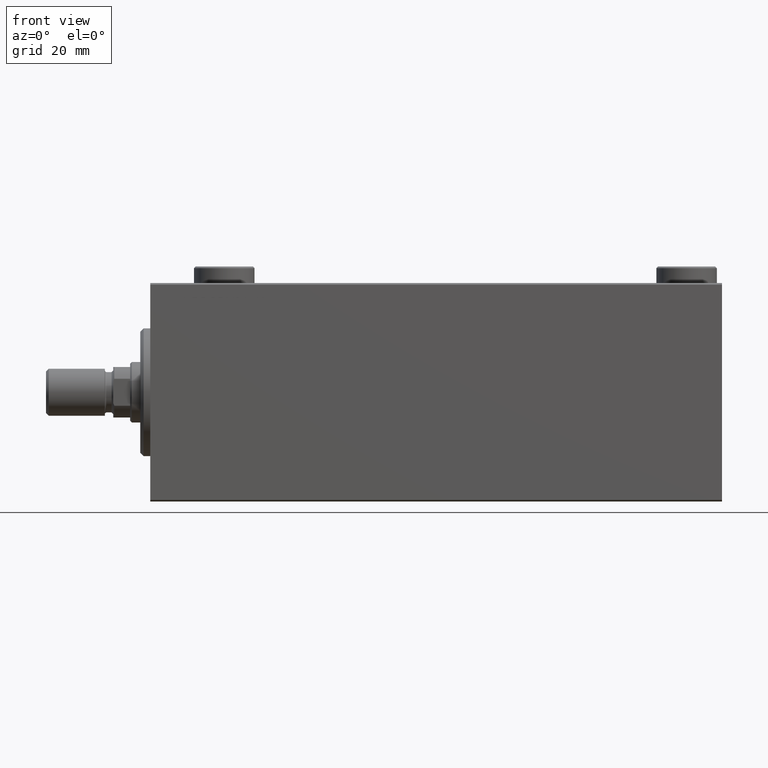
[diagram: clean part render]
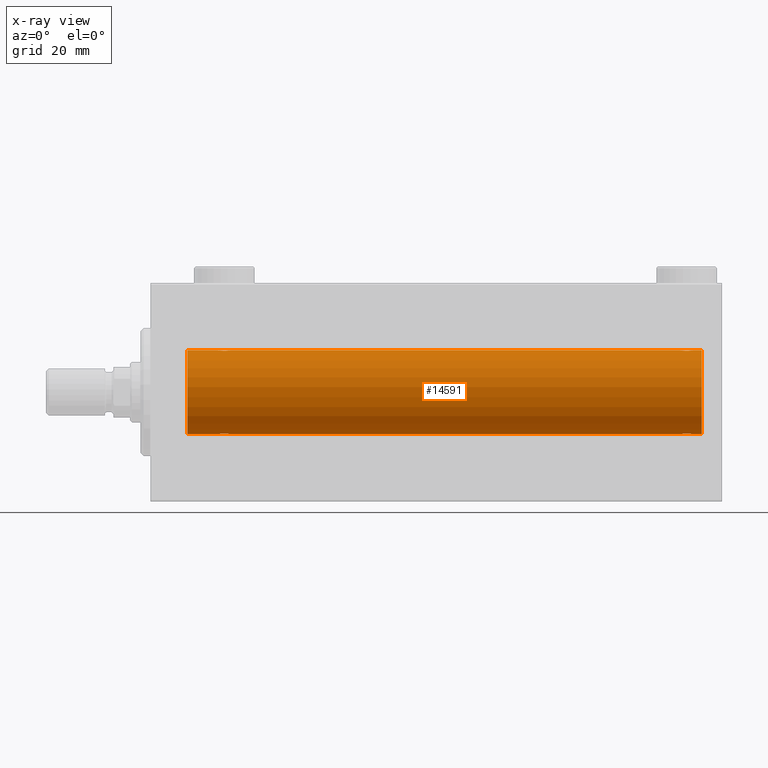
[diagram: x-ray — body ghosted, one internal face saturated and labeled with its STEP entity id]
A machine part, front view, then the same camera in x-ray: the body is ghosted and one INTERNAL B-rep face — a face not visible from any outside direction — is saturated and labeled: STEP entity #14591.
In plain terms, the highlighted cylindrical surface (partial cylindrical patch) has radius 12.5 mm, axis along (-1, -0, -0).
Its self-contained STEP definition (entity closure, byte-faithful):
#656 = CARTESIAN_POINT ( 'NONE',  ( 11.00000000000001066, 0.000000000000000000, 12.50000000000000000 ) ) ;
#1228 = CARTESIAN_POINT ( 'NONE',  ( 24.00000000000000000, -2.019790789754703983E-15, 12.50000000000000000 ) ) ;
#1423 = LINE ( 'NONE', #36312, #24053 ) ;
#1460 = CARTESIAN_POINT ( 'NONE',  ( 21.11125274202960256, -1.796480516834689567, 12.37033750336835602 ) ) ;
#1637 = CARTESIAN_POINT ( 'NONE',  ( 160.7185411954193626, -1.591305132013873358, 12.39851226212236490 ) ) ;
#1782 = CIRCLE ( 'NONE', #42670, 12.50000000000000000 ) ;
#1924 = CARTESIAN_POINT ( 'NONE',  ( 20.05255659427669812, -0.5247436444070349149, 12.49130933415156974 ) ) ;
#2040 = CARTESIAN_POINT ( 'NONE',  ( 22.13340250451295077, -1.999916920503817197, -12.33897614545467469 ) ) ;
#2466 = CARTESIAN_POINT ( 'NONE',  ( 158.4990020790149003, -1.736403706023283311, -12.37902502246767789 ) ) ;
#2538 = CARTESIAN_POINT ( 'NONE',  ( 158.8535610303641192, -1.897190184049181383, 12.35529285772521391 ) ) ;
#2719 = CARTESIAN_POINT ( 'NONE',  ( 20.40255225308977671, -1.231226695485369893, -12.44059298055988627 ) ) ;
#3171 = CARTESIAN_POINT ( 'NONE',  ( 159.7639137310243598, -1.986793270638207209, -12.34112317291865146 ) ) ;
#4063 = ORIENTED_EDGE ( 'NONE', *, *, #10811, .T. ) ;
#4067 = EDGE_CURVE ( 'NONE', #11409, #5570, #23992, .T. ) ;
#5335 = CARTESIAN_POINT ( 'NONE',  ( 164.0000000000000000, 0.000000000000000000, 12.50000000000000000 ) ) ;
#5352 = CARTESIAN_POINT ( 'NONE',  ( 161.5000000000000284, -0.2646816682749797423, 12.50000000000000533 ) ) ;
#5570 = VERTEX_POINT ( 'NONE', #39815 ) ;
#5789 = VERTEX_POINT ( 'NONE', #656 ) ;
#6060 = VERTEX_POINT ( 'NONE', #17601 ) ;
#6106 = EDGE_CURVE ( 'NONE', #6060, #25179, #28759, .T. ) ;
#6127 = VERTEX_POINT ( 'NONE', #19441 ) ;
#6450 = CARTESIAN_POINT ( 'NONE',  ( 21.35574721202270254, -1.897913903092047327, -12.35518060345725289 ) ) ;
#6668 = CARTESIAN_POINT ( 'NONE',  ( 160.3887472579704081, -1.796480516834696006, -12.37033750336835602 ) ) ;
#6694 = B_SPLINE_CURVE_WITH_KNOTS ( 'NONE', 3,
 ( #10157, #41813, #24113, #9688, #38301, #10384, #24342, #13171, #23877, #34805, #6668, #20856, #35034, #3171, #45754, #24573, #13873, #27361, #38998, #6893, #2466, #21089, #35270, #17589, #31780, #45984, #14099, #28289 ),
 .UNSPECIFIED., .F., .F.,
 ( 4, 2, 2, 2, 2, 2, 2, 2, 2, 2, 2, 2, 2, 4 ),
 ( 0.006262980370572156751, 0.007045658964677361212, 0.007436998261729963443, 0.007828337558782566541, 0.008219676855835168772, 0.008611016152887771002, 0.009002355449940373233, 0.009393694746992975464, 0.009785034044045577695, 0.01017637334109817993, 0.01056771263815078216, 0.01095905193520338439, 0.01174173052930858885, 0.01252440912341379331 ),
 .UNSPECIFIED. ) ;
#6893 = CARTESIAN_POINT ( 'NONE',  ( 158.6138384612056598, -1.797736511708074358, -12.37015393445320299 ) ) ;
#7327 = CARTESIAN_POINT ( 'NONE',  ( 157.5000000000000000, -1.754126588401769966E-14, -12.50000000000000000 ) ) ;
#7750 = FACE_OUTER_BOUND ( 'NONE', #34635, .T. ) ;
#7900 = EDGE_CURVE ( 'NONE', #27535, #32664, #22796, .T. ) ;
#8849 = CARTESIAN_POINT ( 'NONE',  ( 158.4965442592331044, -1.734959850168406259, 12.37922718965050883 ) ) ;
#8897 = CARTESIAN_POINT ( 'NONE',  ( 20.67700056892266502, -1.505544071529936634, 12.40934942683854025 ) ) ;
#9075 = CARTESIAN_POINT ( 'NONE',  ( 157.7021439353174515, -0.8858253204748001153, 12.46915613403961132 ) ) ;
#9125 = CARTESIAN_POINT ( 'NONE',  ( 20.20214393531741237, -0.8858253204748030019, 12.46915613403961132 ) ) ;
#9303 = CARTESIAN_POINT ( 'NONE',  ( 157.5525565942766946, -0.5247436444070314732, 12.49130933415156619 ) ) ;
#9355 = CARTESIAN_POINT ( 'NONE',  ( 22.88616153879432957, -1.797736511708064366, 12.37015393445321010 ) ) ;
#9476 = CARTESIAN_POINT ( 'NONE',  ( 20.00000000000000000, -0.2646816682749822958, -12.50000000000000000 ) ) ;
#9506 = DIRECTION ( 'NONE',  ( -1.000000000000000000, -0.000000000000000000, -0.000000000000000000 ) ) ;
#9524 = CARTESIAN_POINT ( 'NONE',  ( 158.1770005689227219, -1.505544071529936634, 12.40934942683854203 ) ) ;
#9688 = CARTESIAN_POINT ( 'NONE',  ( 161.2978560646826054, -0.8858253204748055554, -12.46915613403961665 ) ) ;
#10012 = AXIS2_PLACEMENT_3D ( 'NONE', #11693, #36119, #32623 ) ;
#10157 = CARTESIAN_POINT ( 'NONE',  ( 161.5000000000000000, 1.530808426269529245E-15, -12.50000000000000000 ) ) ;
#10384 = CARTESIAN_POINT ( 'NONE',  ( 161.0898109022829203, -1.220538259806352333, -12.44075068685996932 ) ) ;
#10715 = ORIENTED_EDGE ( 'NONE', *, *, #13296, .T. ) ;
#10811 = EDGE_CURVE ( 'NONE', #22691, #25179, #42299, .T. ) ;
#10827 = VECTOR ( 'NONE', #42529, 1000.000000000000000 ) ;
#11409 = VERTEX_POINT ( 'NONE', #38537 ) ;
#11693 = CARTESIAN_POINT ( 'NONE',  ( 164.0000000000000000, 0.000000000000000000, 0.000000000000000000 ) ) ;
#12567 = CARTESIAN_POINT ( 'NONE',  ( 157.5000000000000853, -0.2612140938986755589, 12.50000000000000533 ) ) ;
#12578 = EDGE_CURVE ( 'NONE', #22691, #5789, #32647, .T. ) ;
#12616 = CARTESIAN_POINT ( 'NONE',  ( 21.86659749548704212, -1.999916920503819862, 12.33897614545467469 ) ) ;
#12740 = CARTESIAN_POINT ( 'NONE',  ( 22.88874725797039389, -1.796480516834687347, -12.37033750336835247 ) ) ;
#12821 = CARTESIAN_POINT ( 'NONE',  ( 164.0000000000000000, 0.000000000000000000, 0.000000000000000000 ) ) ;
#12842 = CARTESIAN_POINT ( 'NONE',  ( 20.49277848532006274, -1.321088093821079168, 12.43033959299025071 ) ) ;
#12986 = EDGE_CURVE ( 'NONE', #39747, #27535, #19576, .T. ) ;
#13171 = CARTESIAN_POINT ( 'NONE',  ( 160.8229994310773918, -1.505544071529932415, -12.40934942683854025 ) ) ;
#13183 = CARTESIAN_POINT ( 'NONE',  ( 164.0000000000000000, 1.530808498934191521E-15, -12.50000000000000000 ) ) ;
#13186 = CARTESIAN_POINT ( 'NONE',  ( 23.32299943107732432, -1.505544071529935080, -12.40934942683853848 ) ) ;
#13239 = CARTESIAN_POINT ( 'NONE',  ( 160.1442527879773365, -1.897913903092044663, 12.35518060345725289 ) ) ;
#13296 = EDGE_CURVE ( 'NONE', #27916, #5789, #1782, .T. ) ;
#13873 = CARTESIAN_POINT ( 'NONE',  ( 159.2390650271439370, -1.987194304939089884, -12.34105826212745782 ) ) ;
#14099 = CARTESIAN_POINT ( 'NONE',  ( 157.5000000000000000, -0.2646816682749994487, -12.50000000000000178 ) ) ;
#14121 = CARTESIAN_POINT ( 'NONE',  ( 164.0000000000000000, 1.530808498934191521E-15, -12.50000000000000000 ) ) ;
#14591 = ADVANCED_FACE ( 'NONE', ( #7750 ), #21945, .F. ) ;
#15331 = EDGE_CURVE ( 'NONE', #19041, #11409, #22059, .T. ) ;
#15639 = CARTESIAN_POINT ( 'NONE',  ( 22.64425278797729746, -1.897913903092049104, 12.35518060345724933 ) ) ;
#15823 = CARTESIAN_POINT ( 'NONE',  ( 160.8211671285144462, -1.507135374967689234, 12.40915432986587241 ) ) ;
#16104 = CARTESIAN_POINT ( 'NONE',  ( 20.26436921980423378, -1.002396200863559850, 12.46022444231050841 ) ) ;
#16142 = ORIENTED_EDGE ( 'NONE', *, *, #35424, .T. ) ;
#16727 = CARTESIAN_POINT ( 'NONE',  ( 159.2360862689756686, -1.986793270638192555, 12.34112317291865324 ) ) ;
#16901 = CARTESIAN_POINT ( 'NONE',  ( 19.99999999999999645, -3.213890523917628161E-15, -12.50000000000000000 ) ) ;
#16907 = CARTESIAN_POINT ( 'NONE',  ( 161.5000000000000000, 3.161822422844574965E-15, 12.50000000000000000 ) ) ;
#16951 = ORIENTED_EDGE ( 'NONE', *, *, #18755, .T. ) ;
#17589 = CARTESIAN_POINT ( 'NONE',  ( 157.9025522530897376, -1.231226695485374778, -12.44059298055987917 ) ) ;
#17601 = CARTESIAN_POINT ( 'NONE',  ( 157.5000000000000000, -7.266434456262306043E-23, 12.50000000000000000 ) ) ;
#17934 = VECTOR ( 'NONE', #9506, 1000.000000000000000 ) ;
#18160 = VECTOR ( 'NONE', #19717, 1000.000000000000000 ) ;
#18554 = CARTESIAN_POINT ( 'NONE',  ( 164.0000000000000000, 1.530808498934191521E-15, -12.50000000000000000 ) ) ;
#18755 = EDGE_CURVE ( 'NONE', #5570, #27916, #39716, .T. ) ;
#18920 = DIRECTION ( 'NONE',  ( -1.000000000000000000, -0.000000000000000000, -0.000000000000000000 ) ) ;
#19041 = VERTEX_POINT ( 'NONE', #7327 ) ;
#19139 = CARTESIAN_POINT ( 'NONE',  ( 20.77972850102579372, -1.589951752150277953, 12.39868561261689095 ) ) ;
#19321 = CARTESIAN_POINT ( 'NONE',  ( 157.5000000000000000, -7.266434456262306043E-23, 12.50000000000000000 ) ) ;
#19373 = CARTESIAN_POINT ( 'NONE',  ( 23.00099792098507834, -1.736403706023272875, 12.37902502246767789 ) ) ;
#19441 = CARTESIAN_POINT ( 'NONE',  ( 161.5000000000000000, 1.530808426269529245E-15, -12.50000000000000000 ) ) ;
#19550 = CARTESIAN_POINT ( 'NONE',  ( 159.6308996732342678, -2.000082296475561794, 12.33894933996983134 ) ) ;
#19576 = CIRCLE ( 'NONE', #45575, 12.50000000000000000 ) ;
#19717 = DIRECTION ( 'NONE',  ( -1.000000000000000000, -0.000000000000000000, -0.000000000000000000 ) ) ;
#19943 = CARTESIAN_POINT ( 'NONE',  ( 20.78145880458060901, -1.591305132013878021, -12.39851226212236313 ) ) ;
#20142 = ORIENTED_EDGE ( 'NONE', *, *, #23640, .T. ) ;
#20170 = CARTESIAN_POINT ( 'NONE',  ( 20.67883287148555382, -1.507135374967699670, -12.40915432986587064 ) ) ;
#20405 = CARTESIAN_POINT ( 'NONE',  ( 23.58981090228289546, -1.220538259806347225, -12.44075068685997287 ) ) ;
#20638 = CARTESIAN_POINT ( 'NONE',  ( 20.25337863379106551, -1.008535157355840761, -12.46157701909767646 ) ) ;
#20856 = CARTESIAN_POINT ( 'NONE',  ( 160.1464389696359660, -1.897190184049198036, -12.35529285772521213 ) ) ;
#20871 = CARTESIAN_POINT ( 'NONE',  ( 22.64643896963591985, -1.897190184049187378, -12.35529285772521924 ) ) ;
#21089 = CARTESIAN_POINT ( 'NONE',  ( 158.2814588045805522, -1.591305132013888457, -12.39851226212235957 ) ) ;
#21945 = CYLINDRICAL_SURFACE ( 'NONE', #10012, 12.50000000000000000 ) ;
#21965 = CARTESIAN_POINT ( 'NONE',  ( 164.0000000000000000, 0.000000000000000000, 12.50000000000000000 ) ) ;
#22059 = LINE ( 'NONE', #18554, #18160 ) ;
#22182 = ORIENTED_EDGE ( 'NONE', *, *, #15331, .T. ) ;
#22598 = DIRECTION ( 'NONE',  ( -1.000000000000000000, -0.000000000000000000, -0.000000000000000000 ) ) ;
#22691 = VERTEX_POINT ( 'NONE', #37240 ) ;
#22796 = LINE ( 'NONE', #5335, #17934 ) ;
#22811 = CARTESIAN_POINT ( 'NONE',  ( 157.9101890977170797, -1.220538259806341008, 12.44075068685997110 ) ) ;
#22862 = CARTESIAN_POINT ( 'NONE',  ( 19.99999999999999645, -7.265724481447607133E-23, 12.50000000000000000 ) ) ;
#23040 = CARTESIAN_POINT ( 'NONE',  ( 161.4466567989838097, -0.5275951738695676685, 12.49118442338578738 ) ) ;
#23088 = CARTESIAN_POINT ( 'NONE',  ( 23.21854119541937678, -1.591305132013879131, 12.39851226212236135 ) ) ;
#23265 = CARTESIAN_POINT ( 'NONE',  ( 160.3861615387943971, -1.797736511708058815, 12.37015393445321187 ) ) ;
#23306 = ORIENTED_EDGE ( 'NONE', *, *, #12986, .F. ) ;
#23444 = CARTESIAN_POINT ( 'NONE',  ( 21.73906502714393341, -1.987194304939077671, -12.34105826212746138 ) ) ;
#23496 = CARTESIAN_POINT ( 'NONE',  ( 157.9927784853200308, -1.321088093821080278, 12.43033959299025071 ) ) ;
#23544 = CARTESIAN_POINT ( 'NONE',  ( 23.74662136620892383, -1.008535157355843648, 12.46157701909767823 ) ) ;
#23640 = EDGE_CURVE ( 'NONE', #6060, #32664, #43678, .T. ) ;
#23715 = CARTESIAN_POINT ( 'NONE',  ( 158.2797285010257724, -1.589951752150270181, 12.39868561261689095 ) ) ;
#23877 = CARTESIAN_POINT ( 'NONE',  ( 160.7202714989741992, -1.589951752150265962, -12.39868561261689095 ) ) ;
#23892 = CARTESIAN_POINT ( 'NONE',  ( 21.11383846120566332, -1.797736511708062368, -12.37015393445320122 ) ) ;
#23992 = B_SPLINE_CURVE_WITH_KNOTS ( 'NONE', 3,
 ( #31335, #27153, #30633, #34588, #30866, #20405, #24357, #13186, #38316, #27376, #12740, #20871, #44838, #34818, #2040, #41365, #23444, #45536, #6450, #23892, #38077, #19943, #20170, #2719, #20638, #37845, #9476, #16901 ),
 .UNSPECIFIED., .F., .F.,
 ( 4, 2, 2, 2, 2, 2, 2, 2, 2, 2, 2, 2, 2, 4 ),
 ( 0.006262980370572176700, 0.007045658964677373355, 0.007436998261729973851, 0.007828337558782575215, 0.008219676855835175711, 0.008611016152887776207, 0.009002355449940376703, 0.009393694746992977199, 0.009785034044045577695, 0.01017637334109817646, 0.01056771263815077869, 0.01095905193520337745, 0.01174173052930858711, 0.01252440912341379504 ),
 .UNSPECIFIED. ) ;
#24053 = VECTOR ( 'NONE', #22598, 1000.000000000000000 ) ;
#24113 = CARTESIAN_POINT ( 'NONE',  ( 161.4474434057233339, -0.5247436444070351369, -12.49130933415156974 ) ) ;
#24342 = CARTESIAN_POINT ( 'NONE',  ( 161.0072215146799977, -1.321088093821073395, -12.43033959299025426 ) ) ;
#24357 = CARTESIAN_POINT ( 'NONE',  ( 23.50722151467992660, -1.321088093821078502, -12.43033959299025248 ) ) ;
#24573 = CARTESIAN_POINT ( 'NONE',  ( 159.3691003267657607, -2.000082296475576893, -12.33894933996983134 ) ) ;
#25127 = EDGE_CURVE ( 'NONE', #39747, #6127, #1423, .T. ) ;
#25179 = VERTEX_POINT ( 'NONE', #44005 ) ;
#25473 = ORIENTED_EDGE ( 'NONE', *, *, #25127, .T. ) ;
#25495 = CARTESIAN_POINT ( 'NONE',  ( 164.0000000000000000, 0.000000000000000000, 12.50000000000000000 ) ) ;
#25693 = ORIENTED_EDGE ( 'NONE', *, *, #4067, .T. ) ;
#25762 = CARTESIAN_POINT ( 'NONE',  ( 164.0000000000000000, 0.000000000000000000, 12.50000000000000000 ) ) ;
#26269 = VECTOR ( 'NONE', #18920, 1000.000000000000000 ) ;
#26533 = CARTESIAN_POINT ( 'NONE',  ( 159.7609349728561199, -1.987194304939070788, 12.34105826212745960 ) ) ;
#26763 = CARTESIAN_POINT ( 'NONE',  ( 158.9803852764212593, -1.935716533151636165, 12.34923763528285434 ) ) ;
#27030 = CARTESIAN_POINT ( 'NONE',  ( 22.51693726697628506, -1.936441098420709439, 12.34912369794528786 ) ) ;
#27153 = CARTESIAN_POINT ( 'NONE',  ( 24.00000000000000711, -0.2612140938986747818, -12.50000000000000533 ) ) ;
#27361 = CARTESIAN_POINT ( 'NONE',  ( 158.9830627330237292, -1.936441098420720319, -12.34912369794528608 ) ) ;
#27376 = CARTESIAN_POINT ( 'NONE',  ( 23.00345574076691335, -1.734959850168410256, -12.37922718965050528 ) ) ;
#27431 = CARTESIAN_POINT ( 'NONE',  ( 160.5009979209851281, -1.736403706023267546, 12.37902502246767966 ) ) ;
#27522 = ORIENTED_EDGE ( 'NONE', *, *, #7900, .F. ) ;
#27535 = VERTEX_POINT ( 'NONE', #25762 ) ;
#27916 = VERTEX_POINT ( 'NONE', #39458 ) ;
#28279 = CARTESIAN_POINT ( 'NONE',  ( 11.00000000000001066, 0.000000000000000000, 0.000000000000000000 ) ) ;
#28289 = CARTESIAN_POINT ( 'NONE',  ( 157.5000000000000000, -1.754126588401769966E-14, -12.50000000000000000 ) ) ;
#28759 = LINE ( 'NONE', #25495, #32777 ) ;
#29600 = CARTESIAN_POINT ( 'NONE',  ( 23.59744774691022684, -1.231226695485370337, 12.44059298055987917 ) ) ;
#29632 = ORIENTED_EDGE ( 'NONE', *, *, #6106, .F. ) ;
#29829 = CARTESIAN_POINT ( 'NONE',  ( 22.13089967323422158, -2.000082296475567567, 12.33894933996983134 ) ) ;
#30008 = CARTESIAN_POINT ( 'NONE',  ( 161.2466213662089842, -1.008535157355840761, 12.46157701909768178 ) ) ;
#30287 = CARTESIAN_POINT ( 'NONE',  ( 20.41018909771709744, -1.220538259806348114, 12.44075068685996754 ) ) ;
#30633 = CARTESIAN_POINT ( 'NONE',  ( 23.94744340572329833, -0.5247436444070328054, -12.49130933415156619 ) ) ;
#30866 = CARTESIAN_POINT ( 'NONE',  ( 23.73563078019576977, -1.002396200863559184, -12.46022444231050663 ) ) ;
#30920 = CARTESIAN_POINT ( 'NONE',  ( 159.3665974954870137, -1.999916920503812090, 12.33897614545467292 ) ) ;
#31335 = CARTESIAN_POINT ( 'NONE',  ( 24.00000000000000000, 1.530808426277417854E-15, -12.50000000000000000 ) ) ;
#31780 = CARTESIAN_POINT ( 'NONE',  ( 157.7533786337910726, -1.008535157355858525, -12.46157701909767468 ) ) ;
#32623 = DIRECTION ( 'NONE',  ( 0.000000000000000000, 0.000000000000000000, 1.000000000000000000 ) ) ;
#32647 = LINE ( 'NONE', #21965, #26269 ) ;
#32664 = VERTEX_POINT ( 'NONE', #16907 ) ;
#32777 = VECTOR ( 'NONE', #39703, 1000.000000000000000 ) ;
#33319 = CARTESIAN_POINT ( 'NONE',  ( 23.99999999999998934, -0.2646816682749779659, 12.49999999999999822 ) ) ;
#34009 = CARTESIAN_POINT ( 'NONE',  ( 21.73608626897564733, -1.986793270638199882, 12.34112317291865146 ) ) ;
#34213 = DIRECTION ( 'NONE',  ( 0.000000000000000000, 0.000000000000000000, 1.000000000000000000 ) ) ;
#34588 = CARTESIAN_POINT ( 'NONE',  ( 23.79785606468258052, -0.8858253204748003373, -12.46915613403960954 ) ) ;
#34635 = EDGE_LOOP ( 'NONE', ( #23306, #25473, #16142, #22182, #25693, #16951, #10715, #42865, #4063, #29632, #20142, #27522 ) ) ;
#34805 = CARTESIAN_POINT ( 'NONE',  ( 160.5034557407669809, -1.734959850168406259, -12.37922718965051061 ) ) ;
#34818 = CARTESIAN_POINT ( 'NONE',  ( 22.26391373102435622, -1.986793270638196551, -12.34112317291864791 ) ) ;
#35025 = DIRECTION ( 'NONE',  ( 0.000000000000000000, 0.000000000000000000, 1.000000000000000000 ) ) ;
#35034 = CARTESIAN_POINT ( 'NONE',  ( 160.0196147235787691, -1.935716533151650820, -12.34923763528284724 ) ) ;
#35270 = CARTESIAN_POINT ( 'NONE',  ( 158.1788328714855822, -1.507135374967705665, -12.40915432986586353 ) ) ;
#35424 = EDGE_CURVE ( 'NONE', #6127, #19041, #6694, .T. ) ;
#36119 = DIRECTION ( 'NONE',  ( -1.000000000000000000, -0.000000000000000000, -0.000000000000000000 ) ) ;
#36312 = CARTESIAN_POINT ( 'NONE',  ( 164.0000000000000000, 1.530808498934191521E-15, -12.50000000000000000 ) ) ;
#36986 = CARTESIAN_POINT ( 'NONE',  ( 160.0169372669762993, -1.936441098420697671, 12.34912369794529141 ) ) ;
#37016 = DIRECTION ( 'NONE',  ( -1.000000000000000000, 0.000000000000000000, 0.000000000000000000 ) ) ;
#37036 = CARTESIAN_POINT ( 'NONE',  ( 21.35356103036408371, -1.897190184049190043, 12.35529285772521391 ) ) ;
#37240 = CARTESIAN_POINT ( 'NONE',  ( 19.99999999999999645, -7.265724481447607133E-23, 12.50000000000000000 ) ) ;
#37269 = CARTESIAN_POINT ( 'NONE',  ( 23.94665679898379906, -0.5275951738695691118, 12.49118442338578561 ) ) ;
#37499 = CARTESIAN_POINT ( 'NONE',  ( 20.99654425923307599, -1.734959850168413142, 12.37922718965050528 ) ) ;
#37674 = CARTESIAN_POINT ( 'NONE',  ( 158.6112527420295635, -1.796480516834680019, 12.37033750336835602 ) ) ;
#37845 = CARTESIAN_POINT ( 'NONE',  ( 20.05334320101619738, -0.5275951738695662252, -12.49118442338578561 ) ) ;
#38077 = CARTESIAN_POINT ( 'NONE',  ( 20.99900207901491811, -1.736403706023270654, -12.37902502246767966 ) ) ;
#38301 = CARTESIAN_POINT ( 'NONE',  ( 161.2356307801957485, -1.002396200863562736, -12.46022444231050841 ) ) ;
#38316 = CARTESIAN_POINT ( 'NONE',  ( 23.22027149897420628, -1.589951752150275732, -12.39868561261689273 ) ) ;
#38537 = CARTESIAN_POINT ( 'NONE',  ( 24.00000000000000000, 1.530808426277417854E-15, -12.50000000000000000 ) ) ;
#38998 = CARTESIAN_POINT ( 'NONE',  ( 158.8557472120227203, -1.897913903092060650, -12.35518060345724933 ) ) ;
#39458 = CARTESIAN_POINT ( 'NONE',  ( 11.00000000000001066, 1.530808498934191521E-15, -12.50000000000000000 ) ) ;
#39703 = DIRECTION ( 'NONE',  ( -1.000000000000000000, -0.000000000000000000, -0.000000000000000000 ) ) ;
#39716 = LINE ( 'NONE', #14121, #10827 ) ;
#39747 = VERTEX_POINT ( 'NONE', #13183 ) ;
#39815 = CARTESIAN_POINT ( 'NONE',  ( 19.99999999999999645, -3.213890523917628161E-15, -12.50000000000000000 ) ) ;
#40556 = CARTESIAN_POINT ( 'NONE',  ( 21.48038527642126283, -1.935716533151644381, 12.34923763528284901 ) ) ;
#40968 = CARTESIAN_POINT ( 'NONE',  ( 161.5000000000000000, 3.161822422844574965E-15, 12.50000000000000000 ) ) ;
#41245 = CARTESIAN_POINT ( 'NONE',  ( 20.00000000000000000, -0.2612140938986765581, 12.50000000000000000 ) ) ;
#41365 = CARTESIAN_POINT ( 'NONE',  ( 21.86910032676576421, -2.000082296475566679, -12.33894933996983490 ) ) ;
#41644 = CARTESIAN_POINT ( 'NONE',  ( 161.0974477469102908, -1.231226695485358569, 12.44059298055988450 ) ) ;
#41813 = CARTESIAN_POINT ( 'NONE',  ( 161.5000000000000568, -0.2612140938986745597, -12.50000000000000178 ) ) ;
#42299 = B_SPLINE_CURVE_WITH_KNOTS ( 'NONE', 3,
 ( #22862, #41245, #1924, #9125, #16104, #30287, #12842, #8897, #19139, #37499, #1460, #37036, #40556, #34009, #12616, #29829, #44494, #27030, #15639, #9355, #19373, #23088, #44041, #29600, #23544, #37269, #33319, #1228 ),
 .UNSPECIFIED., .F., .F.,
 ( 4, 2, 2, 2, 2, 2, 2, 2, 2, 2, 2, 2, 2, 4 ),
 ( 0.006262980370572162822, 0.007045658964677358610, 0.007436998261729958239, 0.007828337558782557867, 0.008219676855835158363, 0.008611016152887758859, 0.009002355449940359355, 0.009393694746992958117, 0.009785034044045558613, 0.01017637334109815911, 0.01056771263815075960, 0.01095905193520336010, 0.01174173052930856803, 0.01252440912341377596 ),
 .UNSPECIFIED. ) ;
#42529 = DIRECTION ( 'NONE',  ( -1.000000000000000000, -0.000000000000000000, -0.000000000000000000 ) ) ;
#42670 = AXIS2_PLACEMENT_3D ( 'NONE', #28279, #45744, #35025 ) ;
#42865 = ORIENTED_EDGE ( 'NONE', *, *, #12578, .F. ) ;
#43678 = B_SPLINE_CURVE_WITH_KNOTS ( 'NONE', 3,
 ( #19321, #12567, #9303, #9075, #45120, #22811, #23496, #9524, #23715, #8849, #37674, #2538, #26763, #16727, #30920, #19550, #26533, #36986, #13239, #23265, #27431, #1637, #15823, #41644, #30008, #23040, #5352, #40968 ),
 .UNSPECIFIED., .F., .F.,
 ( 4, 2, 2, 2, 2, 2, 2, 2, 2, 2, 2, 2, 2, 4 ),
 ( 0.006262980370572171496, 0.007045658964677375090, 0.007436998261729976453, 0.007828337558782578684, 0.008219676855835179180, 0.008611016152887781411, 0.009002355449940383642, 0.009393694746992985872, 0.009785034044045588103, 0.01017637334109819033, 0.01056771263815079256, 0.01095905193520339306, 0.01174173052930859579, 0.01252440912341379851 ),
 .UNSPECIFIED. ) ;
#44005 = CARTESIAN_POINT ( 'NONE',  ( 24.00000000000000000, -2.019790789754703983E-15, 12.50000000000000000 ) ) ;
#44041 = CARTESIAN_POINT ( 'NONE',  ( 23.32116712851443552, -1.507135374967700114, 12.40915432986586708 ) ) ;
#44494 = CARTESIAN_POINT ( 'NONE',  ( 22.26093497285606304, -1.987194304939079004, 12.34105826212746138 ) ) ;
#44838 = CARTESIAN_POINT ( 'NONE',  ( 22.51961472357873717, -1.935716533151642826, -12.34923763528285257 ) ) ;
#45120 = CARTESIAN_POINT ( 'NONE',  ( 157.7643692198042231, -1.002396200863552300, 12.46022444231050841 ) ) ;
#45536 = CARTESIAN_POINT ( 'NONE',  ( 21.48306273302371494, -1.936441098420706997, -12.34912369794528431 ) ) ;
#45575 = AXIS2_PLACEMENT_3D ( 'NONE', #12821, #37016, #34213 ) ;
#45744 = DIRECTION ( 'NONE',  ( -1.000000000000000000, 0.000000000000000000, 0.000000000000000000 ) ) ;
#45754 = CARTESIAN_POINT ( 'NONE',  ( 159.6334025045129863, -1.999916920503827633, -12.33897614545467114 ) ) ;
#45984 = CARTESIAN_POINT ( 'NONE',  ( 157.5533432010162187, -0.5275951738695863202, -12.49118442338578028 ) ) ;